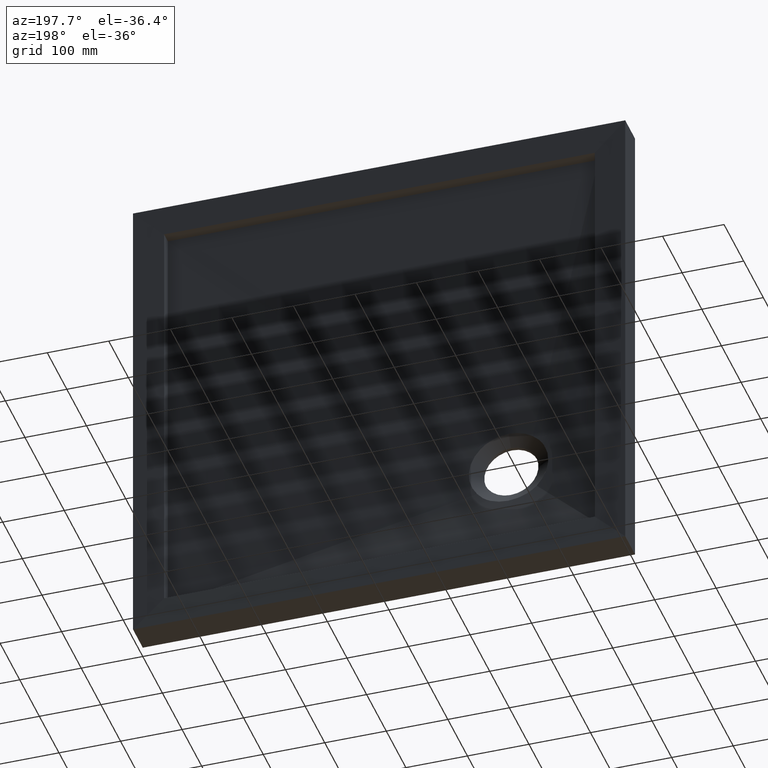
[diagram: clean part render]
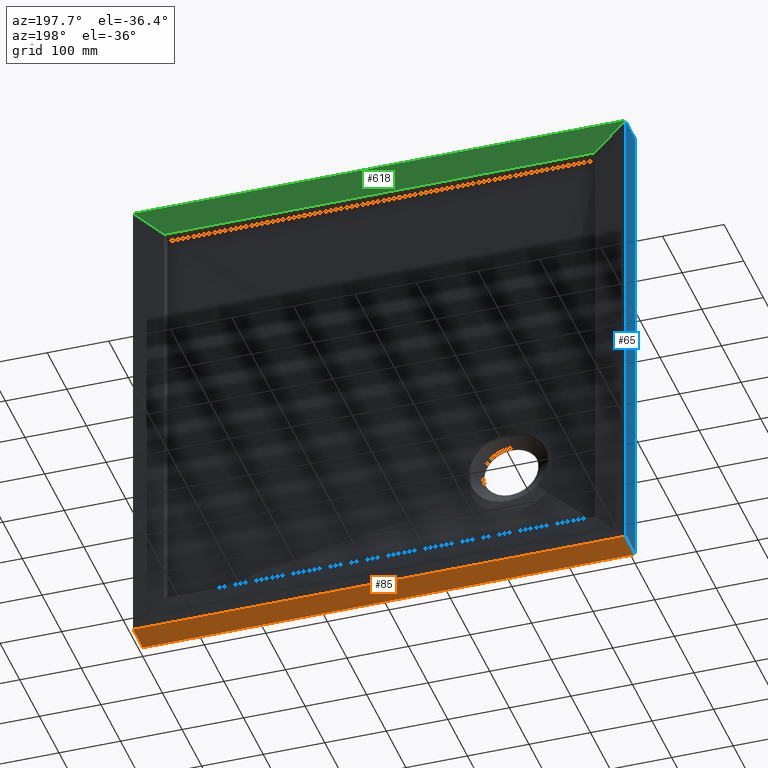
[diagram: same view with three faces highlighted in distinct colors, each labeled with its STEP entity id]
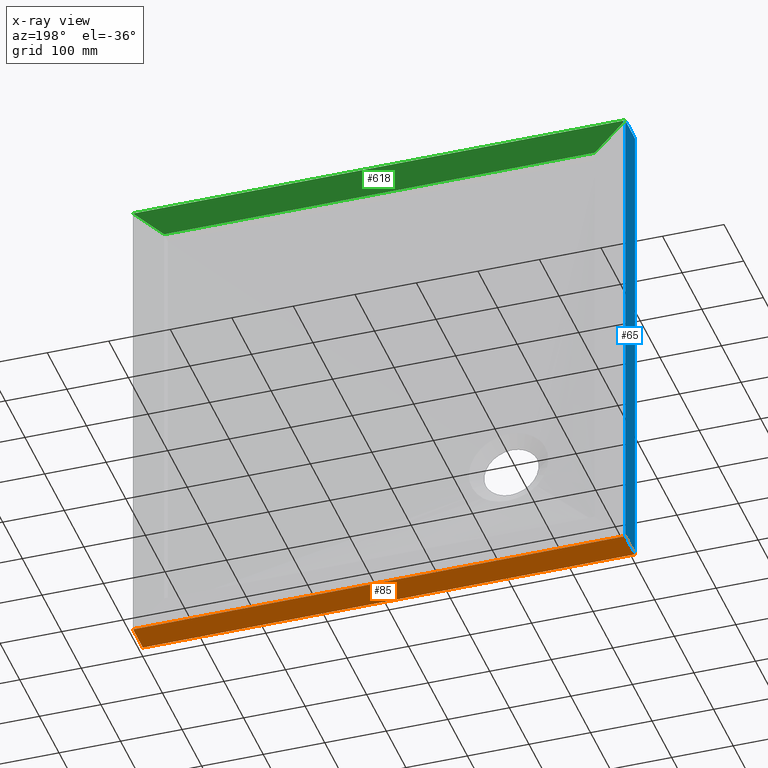
[diagram: x-ray of the same camera — body ghosted, the three highlighted faces saturated]
A machine part, auxiliary view with three faces highlighted in distinct colors.
The next image is the same camera in x-ray (body ghosted, the three faces saturated) — at least one of them is partly hidden behind the body in this view.
Their STEP definitions:

[orange] entity #85 — the highlighted planar face has unit normal (0, 0, 1).
#7 = VERTEX_POINT ( 'NONE', #660 ) ;
#12 = FACE_OUTER_BOUND ( 'NONE', #542, .T. ) ;
#44 = DIRECTION ( 'NONE',  ( 1.000000000000000000, 0.0000000000000000000, -0.0000000000000000000 ) ) ;
#69 = CARTESIAN_POINT ( 'NONE',  ( -400.0000000000001100, 50.00000000000000000, -399.9999999999998900 ) ) ;
#83 = CARTESIAN_POINT ( 'NONE',  ( -400.0000000000001100, 50.00000000000000000, -399.9999999999998900 ) ) ;
#85 = ADVANCED_FACE ( 'NONE', ( #12 ), #619, .F. ) ;
#129 = ORIENTED_EDGE ( 'NONE', *, *, #786, .F. ) ;
#150 = LINE ( 'NONE', #377, #470 ) ;
#166 = DIRECTION ( 'NONE',  ( -0.0000000000000000000, -1.000000000000000000, -0.0000000000000000000 ) ) ;
#209 = AXIS2_PLACEMENT_3D ( 'NONE', #83, #489, #44 ) ;
#210 = VERTEX_POINT ( 'NONE', #310 ) ;
#242 = VERTEX_POINT ( 'NONE', #709 ) ;
#267 = VECTOR ( 'NONE', #323, 1000.000000000000000 ) ;
#306 = EDGE_CURVE ( 'NONE', #242, #210, #150, .T. ) ;
#310 = CARTESIAN_POINT ( 'NONE',  ( 399.9999999999998900, 0.0000000000000000000, -399.9999999999998900 ) ) ;
#323 = DIRECTION ( 'NONE',  ( -1.000000000000000000, -0.0000000000000000000, -0.0000000000000000000 ) ) ;
#356 = VERTEX_POINT ( 'NONE', #637 ) ;
#371 = VECTOR ( 'NONE', #523, 1000.000000000000000 ) ;
#377 = CARTESIAN_POINT ( 'NONE',  ( 399.9999999999998900, 50.00000000000000000, -399.9999999999998900 ) ) ;
#407 = DIRECTION ( 'NONE',  ( -0.0000000000000000000, -1.000000000000000000, -0.0000000000000000000 ) ) ;
#466 = LINE ( 'NONE', #69, #882 ) ;
#470 = VECTOR ( 'NONE', #407, 1000.000000000000000 ) ;
#488 = LINE ( 'NONE', #503, #371 ) ;
#489 = DIRECTION ( 'NONE',  ( 0.0000000000000000000, 0.0000000000000000000, 1.000000000000000000 ) ) ;
#497 = ORIENTED_EDGE ( 'NONE', *, *, #623, .F. ) ;
#503 = CARTESIAN_POINT ( 'NONE',  ( -400.0000000000001100, 50.00000000000000000, -399.9999999999998900 ) ) ;
#519 = ORIENTED_EDGE ( 'NONE', *, *, #306, .T. ) ;
#523 = DIRECTION ( 'NONE',  ( -1.000000000000000000, -0.0000000000000000000, -0.0000000000000000000 ) ) ;
#542 = EDGE_LOOP ( 'NONE', ( #714, #497, #129, #519 ) ) ;
#619 = PLANE ( 'NONE',  #209 ) ;
#623 = EDGE_CURVE ( 'NONE', #7, #356, #466, .T. ) ;
#637 = CARTESIAN_POINT ( 'NONE',  ( -400.0000000000001100, 0.0000000000000000000, -399.9999999999998900 ) ) ;
#660 = CARTESIAN_POINT ( 'NONE',  ( -400.0000000000001100, 50.00000000000000000, -399.9999999999998900 ) ) ;
#698 = EDGE_CURVE ( 'NONE', #210, #356, #704, .T. ) ;
#704 = LINE ( 'NONE', #762, #267 ) ;
#709 = CARTESIAN_POINT ( 'NONE',  ( 399.9999999999998900, 50.00000000000000000, -399.9999999999998900 ) ) ;
#714 = ORIENTED_EDGE ( 'NONE', *, *, #698, .T. ) ;
#762 = CARTESIAN_POINT ( 'NONE',  ( -400.0000000000001100, 0.0000000000000000000, -399.9999999999998900 ) ) ;
#786 = EDGE_CURVE ( 'NONE', #242, #7, #488, .T. ) ;
#882 = VECTOR ( 'NONE', #166, 1000.000000000000000 ) ;

[blue] entity #65 — the highlighted planar face has unit normal (1, 0, -0).
#7 = VERTEX_POINT ( 'NONE', #660 ) ;
#32 = FACE_OUTER_BOUND ( 'NONE', #391, .T. ) ;
#58 = VECTOR ( 'NONE', #239, 1000.000000000000000 ) ;
#65 = ADVANCED_FACE ( 'NONE', ( #32 ), #268, .F. ) ;
#69 = CARTESIAN_POINT ( 'NONE',  ( -400.0000000000001100, 50.00000000000000000, -399.9999999999998900 ) ) ;
#76 = LINE ( 'NONE', #178, #58 ) ;
#91 = ORIENTED_EDGE ( 'NONE', *, *, #506, .F. ) ;
#96 = CARTESIAN_POINT ( 'NONE',  ( -400.0000000000000000, 0.0000000000000000000, 400.0000000000001100 ) ) ;
#127 = LINE ( 'NONE', #260, #605 ) ;
#166 = DIRECTION ( 'NONE',  ( -0.0000000000000000000, -1.000000000000000000, -0.0000000000000000000 ) ) ;
#178 = CARTESIAN_POINT ( 'NONE',  ( -400.0000000000000000, 50.00000000000000000, 400.0000000000001100 ) ) ;
#222 = VERTEX_POINT ( 'NONE', #96 ) ;
#229 = VERTEX_POINT ( 'NONE', #318 ) ;
#239 = DIRECTION ( 'NONE',  ( -0.0000000000000000000, -1.000000000000000000, -0.0000000000000000000 ) ) ;
#255 = LINE ( 'NONE', #550, #394 ) ;
#260 = CARTESIAN_POINT ( 'NONE',  ( -400.0000000000001100, 0.0000000000000000000, -399.9999999999998900 ) ) ;
#268 = PLANE ( 'NONE',  #801 ) ;
#318 = CARTESIAN_POINT ( 'NONE',  ( -400.0000000000000000, 50.00000000000000000, 400.0000000000001100 ) ) ;
#337 = DIRECTION ( 'NONE',  ( 1.387778780781445700E-016, 0.0000000000000000000, 1.000000000000000000 ) ) ;
#338 = EDGE_CURVE ( 'NONE', #356, #222, #127, .T. ) ;
#356 = VERTEX_POINT ( 'NONE', #637 ) ;
#357 = CARTESIAN_POINT ( 'NONE',  ( -400.0000000000001100, 50.00000000000000000, -399.9999999999998900 ) ) ;
#391 = EDGE_LOOP ( 'NONE', ( #599, #91, #426, #724 ) ) ;
#394 = VECTOR ( 'NONE', #337, 1000.000000000000000 ) ;
#426 = ORIENTED_EDGE ( 'NONE', *, *, #457, .F. ) ;
#457 = EDGE_CURVE ( 'NONE', #7, #229, #255, .T. ) ;
#466 = LINE ( 'NONE', #69, #882 ) ;
#506 = EDGE_CURVE ( 'NONE', #229, #222, #76, .T. ) ;
#550 = CARTESIAN_POINT ( 'NONE',  ( -400.0000000000001100, 50.00000000000000000, -399.9999999999998900 ) ) ;
#599 = ORIENTED_EDGE ( 'NONE', *, *, #338, .T. ) ;
#605 = VECTOR ( 'NONE', #758, 1000.000000000000000 ) ;
#623 = EDGE_CURVE ( 'NONE', #7, #356, #466, .T. ) ;
#625 = DIRECTION ( 'NONE',  ( 1.000000000000000000, 0.0000000000000000000, -1.387778780781445700E-016 ) ) ;
#637 = CARTESIAN_POINT ( 'NONE',  ( -400.0000000000001100, 0.0000000000000000000, -399.9999999999998900 ) ) ;
#660 = CARTESIAN_POINT ( 'NONE',  ( -400.0000000000001100, 50.00000000000000000, -399.9999999999998900 ) ) ;
#671 = DIRECTION ( 'NONE',  ( -1.387778780781445700E-016, 0.0000000000000000000, -1.000000000000000000 ) ) ;
#724 = ORIENTED_EDGE ( 'NONE', *, *, #623, .T. ) ;
#758 = DIRECTION ( 'NONE',  ( 1.387778780781445700E-016, 0.0000000000000000000, 1.000000000000000000 ) ) ;
#801 = AXIS2_PLACEMENT_3D ( 'NONE', #357, #625, #671 ) ;
#882 = VECTOR ( 'NONE', #166, 1000.000000000000000 ) ;

[green] entity #618 — the highlighted planar face has unit normal (0, 0.9994, -0.0349).
#19 = DIRECTION ( 'NONE',  ( -1.000000000000000000, 0.0000000000000000000, 0.0000000000000000000 ) ) ;
#109 = CARTESIAN_POINT ( 'NONE',  ( 350.0000000000000600, 48.25745360236189200, 350.0000000000001100 ) ) ;
#158 = DIRECTION ( 'NONE',  ( -0.7068913075831633200, -0.02468518840782788600, -0.7068913075831639900 ) ) ;
#195 = CARTESIAN_POINT ( 'NONE',  ( 350.0000000000000600, 48.25745360236189200, 350.0000000000001700 ) ) ;
#257 = CARTESIAN_POINT ( 'NONE',  ( -350.0000000000000600, 48.25745360236189200, 350.0000000000001700 ) ) ;
#263 = LINE ( 'NONE', #296, #910 ) ;
#274 = ORIENTED_EDGE ( 'NONE', *, *, #564, .T. ) ;
#278 = EDGE_CURVE ( 'NONE', #319, #871, #263, .T. ) ;
#296 = CARTESIAN_POINT ( 'NONE',  ( -350.0000000000000600, 48.25745360236189200, 350.0000000000001700 ) ) ;
#300 = CARTESIAN_POINT ( 'NONE',  ( 0.2132754843557349600, 36.04263202427954100, 0.2132754843556794500 ) ) ;
#309 = CARTESIAN_POINT ( 'NONE',  ( 399.9000000000051500, 50.00000000000000000, 399.9000000000053200 ) ) ;
#319 = VERTEX_POINT ( 'NONE', #257 ) ;
#387 = LINE ( 'NONE', #300, #692 ) ;
#406 = EDGE_CURVE ( 'NONE', #319, #902, #648, .T. ) ;
#456 = PLANE ( 'NONE',  #597 ) ;
#460 = DIRECTION ( 'NONE',  ( 0.0000000000000000000, 0.9993908270190959800, -0.03489949670249543200 ) ) ;
#494 = VECTOR ( 'NONE', #732, 1000.000000000000000 ) ;
#498 = ORIENTED_EDGE ( 'NONE', *, *, #406, .F. ) ;
#564 = EDGE_CURVE ( 'NONE', #569, #902, #387, .T. ) ;
#569 = VERTEX_POINT ( 'NONE', #309 ) ;
#587 = ORIENTED_EDGE ( 'NONE', *, *, #278, .T. ) ;
#597 = AXIS2_PLACEMENT_3D ( 'NONE', #607, #460, #613 ) ;
#607 = CARTESIAN_POINT ( 'NONE',  ( -350.0000000000000600, 48.25745360236189200, 350.0000000000001700 ) ) ;
#613 = DIRECTION ( 'NONE',  ( -1.000000000000000000, 0.0000000000000000000, -0.0000000000000000000 ) ) ;
#618 = ADVANCED_FACE ( 'NONE', ( #661 ), #456, .T. ) ;
#648 = LINE ( 'NONE', #195, #494 ) ;
#661 = FACE_OUTER_BOUND ( 'NONE', #814, .T. ) ;
#674 = EDGE_CURVE ( 'NONE', #569, #871, #783, .T. ) ;
#682 = DIRECTION ( 'NONE',  ( -0.7068913075831636500, 0.02468518840782787600, 0.7068913075831636500 ) ) ;
#692 = VECTOR ( 'NONE', #158, 1000.000000000000100 ) ;
#723 = VECTOR ( 'NONE', #19, 1000.000000000000000 ) ;
#732 = DIRECTION ( 'NONE',  ( 1.000000000000000000, 0.0000000000000000000, 0.0000000000000000000 ) ) ;
#777 = CARTESIAN_POINT ( 'NONE',  ( -350.0000000000000600, 50.00000000000000000, 399.9000000000053200 ) ) ;
#783 = LINE ( 'NONE', #777, #723 ) ;
#814 = EDGE_LOOP ( 'NONE', ( #587, #968, #274, #498 ) ) ;
#831 = CARTESIAN_POINT ( 'NONE',  ( -399.9000000000052100, 50.00000000000000000, 399.9000000000053200 ) ) ;
#871 = VERTEX_POINT ( 'NONE', #831 ) ;
#902 = VERTEX_POINT ( 'NONE', #109 ) ;
#910 = VECTOR ( 'NONE', #682, 1000.000000000000100 ) ;
#968 = ORIENTED_EDGE ( 'NONE', *, *, #674, .F. ) ;